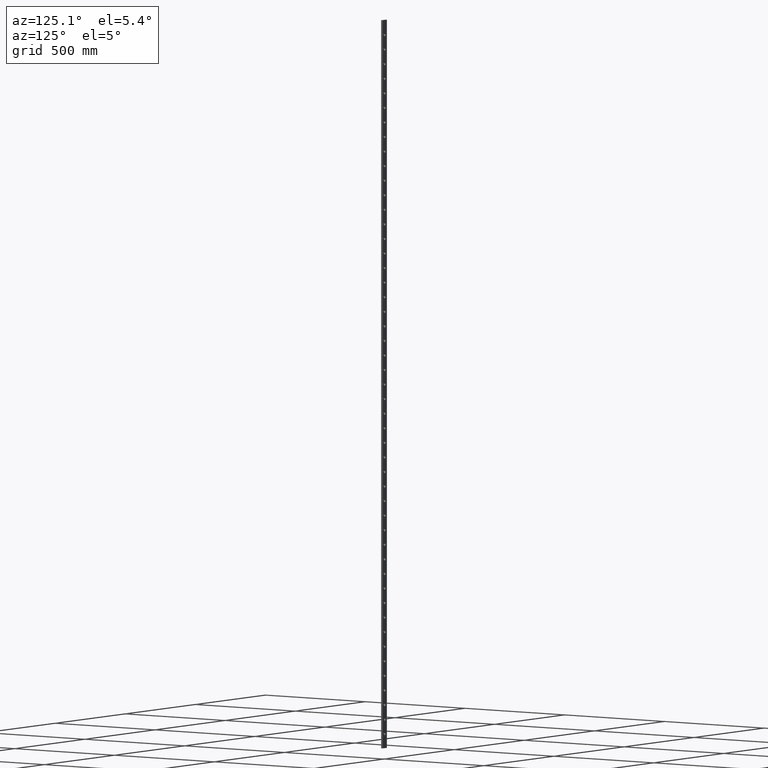
[diagram: clean part render]
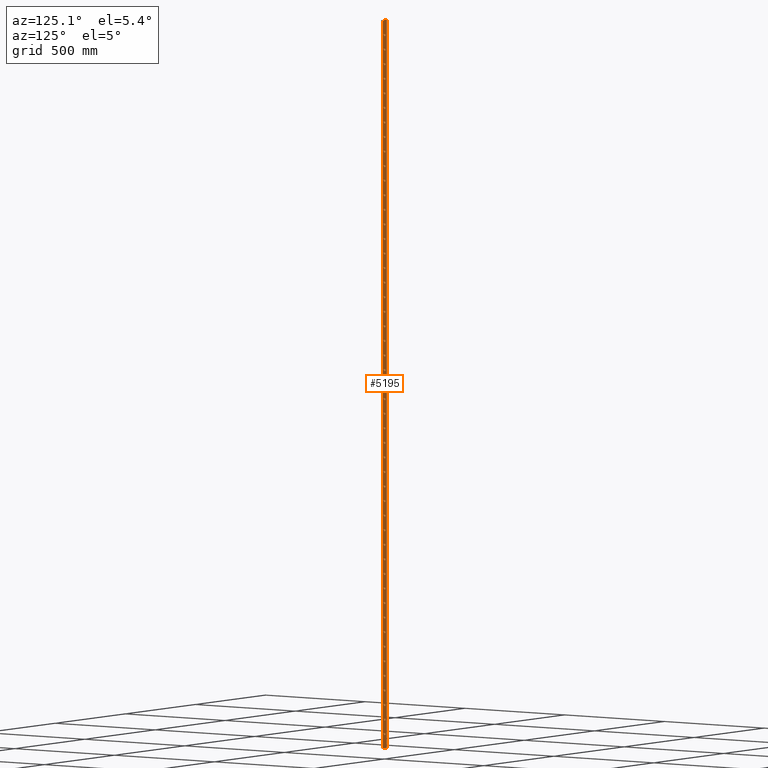
[diagram: same view with one face highlighted and labeled with its STEP entity id]
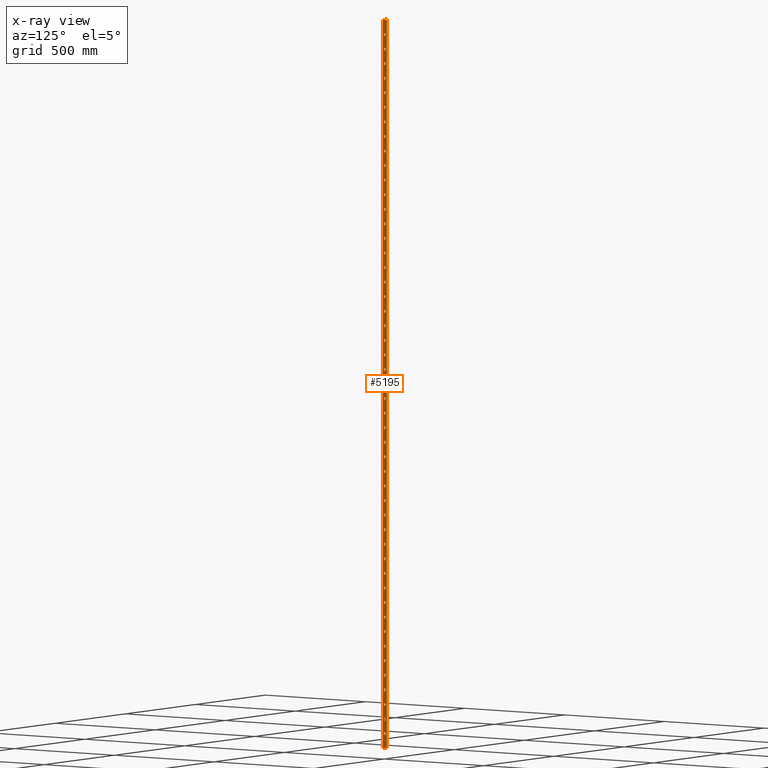
[diagram: x-ray of the same camera — body ghosted, the highlighted face saturated]
A machine part, auxiliary view. The second image highlights one B-rep face of the part: STEP entity #5195.
The next image is the same camera in x-ray: the body ghosted, the highlighted face saturated — about 0% of this face is hidden behind the body in this view.
In plain terms, the highlighted planar face has unit normal (-0, 1, 0).
Its self-contained STEP definition (entity closure, byte-faithful):
#32 = EDGE_LOOP ( 'NONE', ( #4092 ) ) ;
#33 = DIRECTION ( 'NONE',  ( 0.000000000000000000, 1.000000000000000000, 0.000000000000000000 ) ) ;
#49 = ORIENTED_EDGE ( 'NONE', *, *, #12150, .F. ) ;
#83 = EDGE_LOOP ( 'NONE', ( #10927 ) ) ;
#163 = CIRCLE ( 'NONE', #3025, 6.499999999999950262 ) ;
#209 = EDGE_LOOP ( 'NONE', ( #49 ) ) ;
#335 = FACE_BOUND ( 'NONE', #1412, .T. ) ;
#343 = CARTESIAN_POINT ( 'NONE',  ( 0.000000000000000000, 4.000000000000000000, 246.4999999999998863 ) ) ;
#345 = FACE_BOUND ( 'NONE', #6149, .T. ) ;
#380 = AXIS2_PLACEMENT_3D ( 'NONE', #11174, #6291, #5039 ) ;
#397 = CARTESIAN_POINT ( 'NONE',  ( 0.000000000000000000, 4.000000000000000000, 1266.500000000000000 ) ) ;
#443 = ORIENTED_EDGE ( 'NONE', *, *, #15071, .F. ) ;
#487 = VERTEX_POINT ( 'NONE', #397 ) ;
#492 = CARTESIAN_POINT ( 'NONE',  ( 0.000000000000000000, 4.000000000000000000, -353.4999999999999432 ) ) ;
#498 = DIRECTION ( 'NONE',  ( 0.000000000000000000, 1.000000000000000000, 0.000000000000000000 ) ) ;
#530 = DIRECTION ( 'NONE',  ( 0.000000000000000000, 0.000000000000000000, 1.000000000000000000 ) ) ;
#539 = FACE_BOUND ( 'NONE', #10533, .T. ) ;
#551 = DIRECTION ( 'NONE',  ( 0.000000000000000000, 1.000000000000000000, 0.000000000000000000 ) ) ;
#647 = CARTESIAN_POINT ( 'NONE',  ( 0.000000000000000000, 4.000000000000000000, 0.000000000000000000 ) ) ;
#657 = CARTESIAN_POINT ( 'NONE',  ( 0.000000000000000000, 4.000000000000000000, -1013.500000000000114 ) ) ;
#702 = DIRECTION ( 'NONE',  ( 0.000000000000000000, 1.000000000000000000, 0.000000000000000000 ) ) ;
#704 = CARTESIAN_POINT ( 'NONE',  ( 0.000000000000000000, 4.000000000000000000, -773.4999999999998863 ) ) ;
#750 = ORIENTED_EDGE ( 'NONE', *, *, #11049, .F. ) ;
#767 = CARTESIAN_POINT ( 'NONE',  ( 0.000000000000000000, 4.000000000000000000, -60.00000000000005684 ) ) ;
#836 = DIRECTION ( 'NONE',  ( 0.000000000000000000, 1.000000000000000000, 0.000000000000000000 ) ) ;
#917 = FACE_BOUND ( 'NONE', #1176, .T. ) ;
#962 = EDGE_LOOP ( 'NONE', ( #13797 ) ) ;
#1042 = DIRECTION ( 'NONE',  ( 0.000000000000000000, 1.000000000000000000, 0.000000000000000000 ) ) ;
#1061 = CIRCLE ( 'NONE', #3776, 6.499999999999964473 ) ;
#1150 = CARTESIAN_POINT ( 'NONE',  ( 0.000000000000000000, 4.000000000000000000, 1380.000000000000000 ) ) ;
#1151 = CIRCLE ( 'NONE', #6970, 6.499999999999964473 ) ;
#1176 = EDGE_LOOP ( 'NONE', ( #10502 ) ) ;
#1185 = EDGE_CURVE ( 'NONE', #10036, #10036, #13785, .T. ) ;
#1227 = ORIENTED_EDGE ( 'NONE', *, *, #9667, .F. ) ;
#1251 = EDGE_CURVE ( 'NONE', #12918, #12918, #6101, .T. ) ;
#1289 = FACE_BOUND ( 'NONE', #7164, .T. ) ;
#1294 = CARTESIAN_POINT ( 'NONE',  ( 0.000000000000000000, 4.000000000000000000, -1020.000000000000000 ) ) ;
#1303 = DIRECTION ( 'NONE',  ( 0.000000000000000000, 1.000000000000000000, 0.000000000000000000 ) ) ;
#1304 = FACE_BOUND ( 'NONE', #9537, .T. ) ;
#1332 = AXIS2_PLACEMENT_3D ( 'NONE', #8805, #11176, #8641 ) ;
#1339 = CIRCLE ( 'NONE', #5827, 6.499999999999950262 ) ;
#1371 = CARTESIAN_POINT ( 'NONE',  ( 15.00000000000000000, 4.000000000000000000, -1500.000000000000000 ) ) ;
#1412 = EDGE_LOOP ( 'NONE', ( #12208 ) ) ;
#1418 = EDGE_CURVE ( 'NONE', #5617, #5617, #7630, .T. ) ;
#1426 = ORIENTED_EDGE ( 'NONE', *, *, #2620, .F. ) ;
#1463 = CARTESIAN_POINT ( 'NONE',  ( 0.000000000000000000, 4.000000000000000000, 240.0000000000000000 ) ) ;
#1576 = ORIENTED_EDGE ( 'NONE', *, *, #2432, .F. ) ;
#1586 = EDGE_CURVE ( 'NONE', #4817, #4817, #13979, .T. ) ;
#1587 = CARTESIAN_POINT ( 'NONE',  ( 0.000000000000000000, 4.000000000000000000, -593.5000000000001137 ) ) ;
#1608 = ORIENTED_EDGE ( 'NONE', *, *, #8286, .F. ) ;
#1611 = ORIENTED_EDGE ( 'NONE', *, *, #13523, .F. ) ;
#1626 = ORIENTED_EDGE ( 'NONE', *, *, #4208, .T. ) ;
#1647 = VERTEX_POINT ( 'NONE', #2729 ) ;
#1660 = EDGE_CURVE ( 'NONE', #3085, #3085, #7062, .T. ) ;
#1667 = DIRECTION ( 'NONE',  ( 0.000000000000000000, 1.000000000000000000, 0.000000000000000000 ) ) ;
#1685 = AXIS2_PLACEMENT_3D ( 'NONE', #11268, #3874, #5137 ) ;
#1696 = FACE_BOUND ( 'NONE', #11302, .T. ) ;
#1698 = DIRECTION ( 'NONE',  ( 0.000000000000000000, 0.000000000000000000, 1.000000000000000000 ) ) ;
#1700 = CARTESIAN_POINT ( 'NONE',  ( 0.000000000000000000, 4.000000000000000000, 600.0000000000000000 ) ) ;
#1729 = CARTESIAN_POINT ( 'NONE',  ( 0.000000000000000000, 4.000000000000000000, -653.5000000000002274 ) ) ;
#1732 = AXIS2_PLACEMENT_3D ( 'NONE', #11693, #8127, #14095 ) ;
#1747 = DIRECTION ( 'NONE',  ( 0.000000000000000000, 1.000000000000000000, 0.000000000000000000 ) ) ;
#1774 = CIRCLE ( 'NONE', #1779, 6.499999999999950262 ) ;
#1779 = AXIS2_PLACEMENT_3D ( 'NONE', #4559, #8325, #5808 ) ;
#1786 = CARTESIAN_POINT ( 'NONE',  ( 0.000000000000000000, 4.000000000000000000, 1206.500000000000000 ) ) ;
#1792 = DIRECTION ( 'NONE',  ( 0.000000000000000000, 1.000000000000000000, 0.000000000000000000 ) ) ;
#1840 = VERTEX_POINT ( 'NONE', #10713 ) ;
#1848 = CARTESIAN_POINT ( 'NONE',  ( 0.000000000000000000, 4.000000000000000000, -1080.000000000000000 ) ) ;
#1863 = ORIENTED_EDGE ( 'NONE', *, *, #15351, .F. ) ;
#1880 = VERTEX_POINT ( 'NONE', #10071 ) ;
#1881 = CARTESIAN_POINT ( 'NONE',  ( 0.000000000000000000, 4.000000000000000000, -899.9999999999998863 ) ) ;
#1895 = CIRCLE ( 'NONE', #1996, 6.499999999999783284 ) ;
#1912 = ORIENTED_EDGE ( 'NONE', *, *, #10087, .F. ) ;
#1939 = DIRECTION ( 'NONE',  ( 0.000000000000000000, 1.000000000000000000, 0.000000000000000000 ) ) ;
#1978 = ORIENTED_EDGE ( 'NONE', *, *, #5585, .F. ) ;
#1996 = AXIS2_PLACEMENT_3D ( 'NONE', #5902, #836, #2087 ) ;
#2044 = VERTEX_POINT ( 'NONE', #12547 ) ;
#2087 = DIRECTION ( 'NONE',  ( 0.000000000000000000, 0.000000000000000000, 1.000000000000000000 ) ) ;
#2173 = VERTEX_POINT ( 'NONE', #11687 ) ;
#2220 = DIRECTION ( 'NONE',  ( 0.000000000000000000, 1.000000000000000000, 0.000000000000000000 ) ) ;
#2239 = EDGE_CURVE ( 'NONE', #2294, #2294, #6676, .T. ) ;
#2262 = EDGE_CURVE ( 'NONE', #6379, #6379, #15700, .T. ) ;
#2263 = EDGE_LOOP ( 'NONE', ( #6068 ) ) ;
#2278 = FACE_BOUND ( 'NONE', #7181, .T. ) ;
#2294 = VERTEX_POINT ( 'NONE', #4346 ) ;
#2409 = AXIS2_PLACEMENT_3D ( 'NONE', #12641, #11356, #14953 ) ;
#2411 = EDGE_LOOP ( 'NONE', ( #6899 ) ) ;
#2413 = VERTEX_POINT ( 'NONE', #11781 ) ;
#2432 = EDGE_CURVE ( 'NONE', #15786, #15786, #15301, .T. ) ;
#2454 = CIRCLE ( 'NONE', #2833, 6.499999999999950262 ) ;
#2483 = AXIS2_PLACEMENT_3D ( 'NONE', #1463, #2717, #13879 ) ;
#2486 = ORIENTED_EDGE ( 'NONE', *, *, #4543, .F. ) ;
#2512 = VERTEX_POINT ( 'NONE', #14207 ) ;
#2527 = VERTEX_POINT ( 'NONE', #5557 ) ;
#2555 = CIRCLE ( 'NONE', #14485, 6.500000000000172307 ) ;
#2576 = CARTESIAN_POINT ( 'NONE',  ( 0.000000000000000000, 4.000000000000000000, -1199.999999999999773 ) ) ;
#2598 = VERTEX_POINT ( 'NONE', #15480 ) ;
#2603 = DIRECTION ( 'NONE',  ( 0.000000000000000000, 0.000000000000000000, 1.000000000000000000 ) ) ;
#2614 = CIRCLE ( 'NONE', #4629, 6.499999999999950262 ) ;
#2620 = EDGE_CURVE ( 'NONE', #5210, #5210, #3730, .T. ) ;
#2624 = VERTEX_POINT ( 'NONE', #3083 ) ;
#2645 = EDGE_LOOP ( 'NONE', ( #15026 ) ) ;
#2652 = DIRECTION ( 'NONE',  ( 0.000000000000000000, 1.000000000000000000, 0.000000000000000000 ) ) ;
#2653 = EDGE_LOOP ( 'NONE', ( #9454 ) ) ;
#2667 = FACE_BOUND ( 'NONE', #5295, .T. ) ;
#2717 = DIRECTION ( 'NONE',  ( 0.000000000000000000, 1.000000000000000000, 0.000000000000000000 ) ) ;
#2719 = CIRCLE ( 'NONE', #13432, 6.499999999999728217 ) ;
#2726 = AXIS2_PLACEMENT_3D ( 'NONE', #10835, #1792, #7141 ) ;
#2729 = CARTESIAN_POINT ( 'NONE',  ( 0.000000000000000000, 4.000000000000000000, 1326.499999999999773 ) ) ;
#2758 = EDGE_LOOP ( 'NONE', ( #8929 ) ) ;
#2833 = AXIS2_PLACEMENT_3D ( 'NONE', #2576, #14978, #12338 ) ;
#2874 = FACE_BOUND ( 'NONE', #2758, .T. ) ;
#2963 = ORIENTED_EDGE ( 'NONE', *, *, #11265, .F. ) ;
#2993 = CIRCLE ( 'NONE', #6741, 6.499999999999950262 ) ;
#2996 = CARTESIAN_POINT ( 'NONE',  ( 0.000000000000000000, 4.000000000000000000, 66.49999999999991473 ) ) ;
#3021 = VERTEX_POINT ( 'NONE', #3222 ) ;
#3025 = AXIS2_PLACEMENT_3D ( 'NONE', #9820, #7298, #14700 ) ;
#3051 = CARTESIAN_POINT ( 'NONE',  ( 0.000000000000000000, 4.000000000000000000, 366.4999999999997726 ) ) ;
#3083 = CARTESIAN_POINT ( 'NONE',  ( 0.000000000000000000, 4.000000000000000000, -713.5000000000002274 ) ) ;
#3085 = VERTEX_POINT ( 'NONE', #6788 ) ;
#3128 = DIRECTION ( 'NONE',  ( 0.000000000000000000, 0.000000000000000000, 1.000000000000000000 ) ) ;
#3211 = DIRECTION ( 'NONE',  ( 0.000000000000000000, 1.000000000000000000, 0.000000000000000000 ) ) ;
#3219 = ORIENTED_EDGE ( 'NONE', *, *, #4090, .F. ) ;
#3220 = EDGE_CURVE ( 'NONE', #5396, #5396, #10284, .T. ) ;
#3222 = CARTESIAN_POINT ( 'NONE',  ( 0.000000000000000000, 4.000000000000000000, 726.4999999999998863 ) ) ;
#3231 = ORIENTED_EDGE ( 'NONE', *, *, #10964, .F. ) ;
#3232 = DIRECTION ( 'NONE',  ( 0.000000000000000000, 0.000000000000000000, 1.000000000000000000 ) ) ;
#3247 = AXIS2_PLACEMENT_3D ( 'NONE', #6957, #702, #8234 ) ;
#3275 = FACE_BOUND ( 'NONE', #6678, .T. ) ;
#3329 = ORIENTED_EDGE ( 'NONE', *, *, #12258, .F. ) ;
#3366 = CARTESIAN_POINT ( 'NONE',  ( 0.000000000000000000, 4.000000000000000000, 780.0000000000000000 ) ) ;
#3424 = DIRECTION ( 'NONE',  ( 0.000000000000000000, 0.000000000000000000, 1.000000000000000000 ) ) ;
#3428 = ORIENTED_EDGE ( 'NONE', *, *, #2262, .F. ) ;
#3555 = EDGE_LOOP ( 'NONE', ( #15830 ) ) ;
#3602 = CARTESIAN_POINT ( 'NONE',  ( 0.000000000000000000, 4.000000000000000000, -839.9999999999998863 ) ) ;
#3620 = VECTOR ( 'NONE', #8405, 1000.000000000000000 ) ;
#3645 = FACE_BOUND ( 'NONE', #6607, .T. ) ;
#3711 = AXIS2_PLACEMENT_3D ( 'NONE', #13004, #6833, #8115 ) ;
#3726 = EDGE_CURVE ( 'NONE', #4804, #4804, #9905, .T. ) ;
#3730 = CIRCLE ( 'NONE', #10795, 6.499999999999728217 ) ;
#3776 = AXIS2_PLACEMENT_3D ( 'NONE', #767, #4418, #12926 ) ;
#3834 = FACE_BOUND ( 'NONE', #7367, .T. ) ;
#3874 = DIRECTION ( 'NONE',  ( 0.000000000000000000, 1.000000000000000000, 0.000000000000000000 ) ) ;
#3955 = CARTESIAN_POINT ( 'NONE',  ( 0.000000000000000000, 4.000000000000000000, -480.0000000000000000 ) ) ;
#4030 = ORIENTED_EDGE ( 'NONE', *, *, #7749, .F. ) ;
#4090 = EDGE_CURVE ( 'NONE', #4395, #4395, #10684, .T. ) ;
#4092 = ORIENTED_EDGE ( 'NONE', *, *, #6042, .F. ) ;
#4114 = VERTEX_POINT ( 'NONE', #15531 ) ;
#4133 = ORIENTED_EDGE ( 'NONE', *, *, #6400, .T. ) ;
#4163 = EDGE_CURVE ( 'NONE', #7854, #7854, #1774, .T. ) ;
#4180 = CARTESIAN_POINT ( 'NONE',  ( 0.000000000000000000, 4.000000000000000000, 666.4999999999998863 ) ) ;
#4208 = EDGE_CURVE ( 'NONE', #1880, #10727, #6829, .T. ) ;
#4216 = CARTESIAN_POINT ( 'NONE',  ( 0.000000000000000000, 4.000000000000000000, -720.0000000000002274 ) ) ;
#4224 = FACE_BOUND ( 'NONE', #4824, .T. ) ;
#4327 = EDGE_LOOP ( 'NONE', ( #7303 ) ) ;
#4346 = CARTESIAN_POINT ( 'NONE',  ( 0.000000000000000000, 4.000000000000000000, 1446.500000000000000 ) ) ;
#4376 = CARTESIAN_POINT ( 'NONE',  ( 0.000000000000000000, 4.000000000000000000, 1319.999999999999773 ) ) ;
#4395 = VERTEX_POINT ( 'NONE', #704 ) ;
#4418 = DIRECTION ( 'NONE',  ( 0.000000000000000000, 1.000000000000000000, 0.000000000000000000 ) ) ;
#4476 = EDGE_CURVE ( 'NONE', #7460, #7460, #4695, .T. ) ;
#4477 = CARTESIAN_POINT ( 'NONE',  ( 0.000000000000000000, 4.000000000000000000, 179.9999999999999432 ) ) ;
#4481 = AXIS2_PLACEMENT_3D ( 'NONE', #15891, #9717, #14660 ) ;
#4518 = CIRCLE ( 'NONE', #12535, 6.499999999999950262 ) ;
#4521 = ORIENTED_EDGE ( 'NONE', *, *, #9839, .F. ) ;
#4543 = EDGE_CURVE ( 'NONE', #5731, #5731, #2555, .T. ) ;
#4546 = DIRECTION ( 'NONE',  ( 0.000000000000000000, 0.000000000000000000, 1.000000000000000000 ) ) ;
#4550 = EDGE_LOOP ( 'NONE', ( #3428 ) ) ;
#4559 = CARTESIAN_POINT ( 'NONE',  ( 0.000000000000000000, 4.000000000000000000, 659.9999999999998863 ) ) ;
#4582 = VERTEX_POINT ( 'NONE', #7549 ) ;
#4629 = AXIS2_PLACEMENT_3D ( 'NONE', #12137, #2220, #7151 ) ;
#4650 = CARTESIAN_POINT ( 'NONE',  ( 0.000000000000000000, 4.000000000000000000, 1140.000000000000000 ) ) ;
#4675 = EDGE_LOOP ( 'NONE', ( #5571 ) ) ;
#4695 = CIRCLE ( 'NONE', #13665, 6.499999999999950262 ) ;
#4713 = DIRECTION ( 'NONE',  ( 0.000000000000000000, 0.000000000000000000, 1.000000000000000000 ) ) ;
#4715 = ORIENTED_EDGE ( 'NONE', *, *, #6334, .F. ) ;
#4735 = EDGE_LOOP ( 'NONE', ( #13188 ) ) ;
#4752 = EDGE_CURVE ( 'NONE', #10727, #10765, #11856, .T. ) ;
#4774 = ORIENTED_EDGE ( 'NONE', *, *, #10233, .T. ) ;
#4804 = VERTEX_POINT ( 'NONE', #12956 ) ;
#4817 = VERTEX_POINT ( 'NONE', #2996 ) ;
#4824 = EDGE_LOOP ( 'NONE', ( #3231 ) ) ;
#4828 = EDGE_CURVE ( 'NONE', #2413, #2413, #4518, .T. ) ;
#4883 = VERTEX_POINT ( 'NONE', #1729 ) ;
#4908 = EDGE_LOOP ( 'NONE', ( #5270 ) ) ;
#4956 = CARTESIAN_POINT ( 'NONE',  ( 0.000000000000000000, 4.000000000000000000, 419.9999999999999432 ) ) ;
#4957 = VERTEX_POINT ( 'NONE', #8121 ) ;
#5008 = FACE_OUTER_BOUND ( 'NONE', #13108, .T. ) ;
#5039 = DIRECTION ( 'NONE',  ( 0.000000000000000000, 0.000000000000000000, 1.000000000000000000 ) ) ;
#5116 = CARTESIAN_POINT ( 'NONE',  ( -15.00000000000000000, 4.000000000000000000, 1500.000000000000000 ) ) ;
#5137 = DIRECTION ( 'NONE',  ( 0.000000000000000000, 0.000000000000000000, 1.000000000000000000 ) ) ;
#5152 = VERTEX_POINT ( 'NONE', #12603 ) ;
#5194 = FACE_BOUND ( 'NONE', #5417, .T. ) ;
#5195 = ADVANCED_FACE ( 'NONE', ( #15215, #6175, #12330, #9632, #11948, #5988, #12509, #10026, #1304, #14063, #6366, #9048, #2667, #8465, #3275, #6571, #5800, #15969, #13105, #15402, #4224, #5408, #12124, #10802, #5008, #5601, #539, #2874, #2278, #917, #13666, #10403, #11753, #5194, #14828, #7133, #1696, #11567, #3645, #345, #9448, #3834, #1289, #10977, #6955, #10011, #335, #7500, #6164, #11153 ), #15682, .T. ) ;
#5210 = VERTEX_POINT ( 'NONE', #9131 ) ;
#5270 = ORIENTED_EDGE ( 'NONE', *, *, #10350, .F. ) ;
#5288 = CIRCLE ( 'NONE', #5389, 6.499999999999950262 ) ;
#5295 = EDGE_LOOP ( 'NONE', ( #14190 ) ) ;
#5312 = AXIS2_PLACEMENT_3D ( 'NONE', #4956, #1303, #8767 ) ;
#5322 = VERTEX_POINT ( 'NONE', #657 ) ;
#5329 = DIRECTION ( 'NONE',  ( 0.000000000000000000, 1.000000000000000000, 0.000000000000000000 ) ) ;
#5352 = VERTEX_POINT ( 'NONE', #492 ) ;
#5389 = AXIS2_PLACEMENT_3D ( 'NONE', #12881, #6653, #1698 ) ;
#5396 = VERTEX_POINT ( 'NONE', #3051 ) ;
#5408 = FACE_BOUND ( 'NONE', #13920, .T. ) ;
#5417 = EDGE_LOOP ( 'NONE', ( #14543 ) ) ;
#5438 = EDGE_LOOP ( 'NONE', ( #3219 ) ) ;
#5441 = CARTESIAN_POINT ( 'NONE',  ( 0.000000000000000000, 4.000000000000000000, 840.0000000000000000 ) ) ;
#5491 = CARTESIAN_POINT ( 'NONE',  ( 0.000000000000000000, 4.000000000000000000, -293.5000000000002842 ) ) ;
#5551 = VERTEX_POINT ( 'NONE', #13724 ) ;
#5557 = CARTESIAN_POINT ( 'NONE',  ( 0.000000000000000000, 4.000000000000000000, 966.4999999999998863 ) ) ;
#5571 = ORIENTED_EDGE ( 'NONE', *, *, #3220, .F. ) ;
#5585 = EDGE_CURVE ( 'NONE', #6682, #6682, #1895, .T. ) ;
#5589 = EDGE_CURVE ( 'NONE', #2598, #2598, #10596, .T. ) ;
#5590 = CIRCLE ( 'NONE', #8627, 6.499999999999950262 ) ;
#5601 = FACE_BOUND ( 'NONE', #11168, .T. ) ;
#5606 = CARTESIAN_POINT ( 'NONE',  ( 0.000000000000000000, 4.000000000000000000, -1373.500000000000000 ) ) ;
#5617 = VERTEX_POINT ( 'NONE', #6686 ) ;
#5652 = CARTESIAN_POINT ( 'NONE',  ( 0.000000000000000000, 4.000000000000000000, 546.5000000000002274 ) ) ;
#5655 = CARTESIAN_POINT ( 'NONE',  ( -15.00000000000000000, 4.000000000000000000, 1500.000000000000000 ) ) ;
#5659 = CARTESIAN_POINT ( 'NONE',  ( 0.000000000000000000, 4.000000000000000000, 1080.000000000000000 ) ) ;
#5687 = VECTOR ( 'NONE', #10603, 1000.000000000000000 ) ;
#5705 = DIRECTION ( 'NONE',  ( -0.000000000000000000, 1.000000000000000000, 0.000000000000000000 ) ) ;
#5731 = VERTEX_POINT ( 'NONE', #8069 ) ;
#5753 = VERTEX_POINT ( 'NONE', #14041 ) ;
#5790 = CARTESIAN_POINT ( 'NONE',  ( 0.000000000000000000, 4.000000000000000000, -660.0000000000001137 ) ) ;
#5791 = DIRECTION ( 'NONE',  ( 0.000000000000000000, 0.000000000000000000, 1.000000000000000000 ) ) ;
#5800 = FACE_BOUND ( 'NONE', #13737, .T. ) ;
#5808 = DIRECTION ( 'NONE',  ( 0.000000000000000000, 0.000000000000000000, 1.000000000000000000 ) ) ;
#5827 = AXIS2_PLACEMENT_3D ( 'NONE', #7006, #9367, #10606 ) ;
#5836 = DIRECTION ( 'NONE',  ( 0.000000000000000000, 0.000000000000000000, 1.000000000000000000 ) ) ;
#5902 = CARTESIAN_POINT ( 'NONE',  ( 0.000000000000000000, 4.000000000000000000, -240.0000000000000000 ) ) ;
#5988 = FACE_BOUND ( 'NONE', #5438, .T. ) ;
#6020 = EDGE_CURVE ( 'NONE', #11062, #11062, #2454, .T. ) ;
#6042 = EDGE_CURVE ( 'NONE', #13948, #13948, #7682, .T. ) ;
#6041 = CIRCLE ( 'NONE', #9298, 6.499999999999950262 ) ;
#6068 = ORIENTED_EDGE ( 'NONE', *, *, #1185, .F. ) ;
#6101 = CIRCLE ( 'NONE', #4481, 6.499999999999950262 ) ;
#6149 = EDGE_LOOP ( 'NONE', ( #1978 ) ) ;
#6164 = FACE_BOUND ( 'NONE', #4327, .T. ) ;
#6175 = FACE_BOUND ( 'NONE', #4908, .T. ) ;
#6183 = EDGE_LOOP ( 'NONE', ( #4521 ) ) ;
#6221 = EDGE_CURVE ( 'NONE', #2173, #2173, #15186, .T. ) ;
#6237 = VERTEX_POINT ( 'NONE', #6910 ) ;
#6269 = LINE ( 'NONE', #1371, #15687 ) ;
#6277 = AXIS2_PLACEMENT_3D ( 'NONE', #3366, #9576, #3424 ) ;
#6291 = DIRECTION ( 'NONE',  ( 0.000000000000000000, 1.000000000000000000, 0.000000000000000000 ) ) ;
#6334 = EDGE_CURVE ( 'NONE', #4883, #4883, #5590, .T. ) ;
#6366 = FACE_BOUND ( 'NONE', #2263, .T. ) ;
#6379 = VERTEX_POINT ( 'NONE', #5652 ) ;
#6400 = EDGE_CURVE ( 'NONE', #10765, #4114, #7306, .T. ) ;
#6571 = FACE_BOUND ( 'NONE', #7817, .T. ) ;
#6573 = DIRECTION ( 'NONE',  ( 0.000000000000000000, 0.000000000000000000, 1.000000000000000000 ) ) ;
#6607 = EDGE_LOOP ( 'NONE', ( #8952 ) ) ;
#6653 = DIRECTION ( 'NONE',  ( 0.000000000000000000, 1.000000000000000000, 0.000000000000000000 ) ) ;
#6669 = AXIS2_PLACEMENT_3D ( 'NONE', #13760, #5329, #6573 ) ;
#6672 = DIRECTION ( 'NONE',  ( 0.000000000000000000, 0.000000000000000000, 1.000000000000000000 ) ) ;
#6676 = CIRCLE ( 'NONE', #6669, 6.499999999999950262 ) ;
#6678 = EDGE_LOOP ( 'NONE', ( #1863 ) ) ;
#6682 = VERTEX_POINT ( 'NONE', #10483 ) ;
#6686 = CARTESIAN_POINT ( 'NONE',  ( 0.000000000000000000, 4.000000000000000000, 426.4999999999998295 ) ) ;
#6741 = AXIS2_PLACEMENT_3D ( 'NONE', #1294, #498, #11184 ) ;
#6788 = CARTESIAN_POINT ( 'NONE',  ( 0.000000000000000000, 4.000000000000000000, 1146.499999999999773 ) ) ;
#6791 = DIRECTION ( 'NONE',  ( 0.000000000000000000, 0.000000000000000000, 1.000000000000000000 ) ) ;
#6829 = LINE ( 'NONE', #9566, #8364 ) ;
#6833 = DIRECTION ( 'NONE',  ( 0.000000000000000000, 1.000000000000000000, 0.000000000000000000 ) ) ;
#6899 = ORIENTED_EDGE ( 'NONE', *, *, #12095, .F. ) ;
#6910 = CARTESIAN_POINT ( 'NONE',  ( 0.000000000000000000, 4.000000000000000000, -53.50000000000009237 ) ) ;
#6914 = CIRCLE ( 'NONE', #2726, 6.499999999999950262 ) ;
#6919 = CARTESIAN_POINT ( 'NONE',  ( 0.000000000000000000, 4.000000000000000000, -300.0000000000000568 ) ) ;
#6940 = CARTESIAN_POINT ( 'NONE',  ( 0.000000000000000000, 4.000000000000000000, 720.0000000000000000 ) ) ;
#6955 = FACE_BOUND ( 'NONE', #4735, .T. ) ;
#6957 = CARTESIAN_POINT ( 'NONE',  ( 0.000000000000000000, 4.000000000000000000, 120.0000000000001137 ) ) ;
#6970 = AXIS2_PLACEMENT_3D ( 'NONE', #7965, #1747, #11643 ) ;
#7006 = CARTESIAN_POINT ( 'NONE',  ( 0.000000000000000000, 4.000000000000000000, -600.0000000000001137 ) ) ;
#7052 = CARTESIAN_POINT ( 'NONE',  ( 0.000000000000000000, 4.000000000000000000, -359.9999999999998863 ) ) ;
#7062 = CIRCLE ( 'NONE', #11078, 6.499999999999950262 ) ;
#7065 = ORIENTED_EDGE ( 'NONE', *, *, #2239, .F. ) ;
#7133 = FACE_BOUND ( 'NONE', #13834, .T. ) ;
#7141 = DIRECTION ( 'NONE',  ( 0.000000000000000000, 0.000000000000000000, 1.000000000000000000 ) ) ;
#7151 = DIRECTION ( 'NONE',  ( 0.000000000000000000, 0.000000000000000000, 1.000000000000000000 ) ) ;
#7164 = EDGE_LOOP ( 'NONE', ( #443 ) ) ;
#7181 = EDGE_LOOP ( 'NONE', ( #12019 ) ) ;
#7232 = DIRECTION ( 'NONE',  ( 0.000000000000000000, 1.000000000000000000, 0.000000000000000000 ) ) ;
#7245 = CIRCLE ( 'NONE', #1732, 6.499999999999950262 ) ;
#7289 = CARTESIAN_POINT ( 'NONE',  ( 0.000000000000000000, 4.000000000000000000, 480.0000000000000000 ) ) ;
#7293 = CARTESIAN_POINT ( 'NONE',  ( 0.000000000000000000, 4.000000000000000000, 0.000000000000000000 ) ) ;
#7298 = DIRECTION ( 'NONE',  ( 0.000000000000000000, 1.000000000000000000, 0.000000000000000000 ) ) ;
#7303 = ORIENTED_EDGE ( 'NONE', *, *, #15755, .F. ) ;
#7306 = LINE ( 'NONE', #14524, #3620 ) ;
#7367 = EDGE_LOOP ( 'NONE', ( #2963 ) ) ;
#7460 = VERTEX_POINT ( 'NONE', #12795 ) ;
#7500 = FACE_BOUND ( 'NONE', #13652, .T. ) ;
#7549 = CARTESIAN_POINT ( 'NONE',  ( 0.000000000000000000, 4.000000000000000000, -893.5000000000000000 ) ) ;
#7581 = EDGE_LOOP ( 'NONE', ( #1227 ) ) ;
#7630 = CIRCLE ( 'NONE', #5312, 6.499999999999895195 ) ;
#7682 = CIRCLE ( 'NONE', #1685, 6.499999999999950262 ) ;
#7725 = EDGE_CURVE ( 'NONE', #13168, #13168, #6914, .T. ) ;
#7749 = EDGE_CURVE ( 'NONE', #6237, #6237, #1061, .T. ) ;
#7784 = CIRCLE ( 'NONE', #9915, 6.499999999999950262 ) ;
#7817 = EDGE_LOOP ( 'NONE', ( #8711 ) ) ;
#7846 = VERTEX_POINT ( 'NONE', #343 ) ;
#7854 = VERTEX_POINT ( 'NONE', #4180 ) ;
#7947 = DIRECTION ( 'NONE',  ( 0.000000000000000000, 1.000000000000000000, 0.000000000000000000 ) ) ;
#7965 = CARTESIAN_POINT ( 'NONE',  ( 0.000000000000000000, 4.000000000000000000, -120.0000000000001137 ) ) ;
#8069 = CARTESIAN_POINT ( 'NONE',  ( 0.000000000000000000, 4.000000000000000000, 606.5000000000001137 ) ) ;
#8095 = AXIS2_PLACEMENT_3D ( 'NONE', #14474, #14589, #13409 ) ;
#8101 = DIRECTION ( 'NONE',  ( 0.000000000000000000, 1.000000000000000000, 0.000000000000000000 ) ) ;
#8115 = DIRECTION ( 'NONE',  ( 0.000000000000000000, 0.000000000000000000, 1.000000000000000000 ) ) ;
#8119 = ORIENTED_EDGE ( 'NONE', *, *, #7725, .F. ) ;
#8121 = CARTESIAN_POINT ( 'NONE',  ( 0.000000000000000000, 4.000000000000000000, 846.5000000000001137 ) ) ;
#8127 = DIRECTION ( 'NONE',  ( 0.000000000000000000, 1.000000000000000000, 0.000000000000000000 ) ) ;
#8214 = DIRECTION ( 'NONE',  ( 0.000000000000000000, 1.000000000000000000, 0.000000000000000000 ) ) ;
#8222 = EDGE_LOOP ( 'NONE', ( #750 ) ) ;
#8234 = DIRECTION ( 'NONE',  ( 0.000000000000000000, 0.000000000000000000, 1.000000000000000000 ) ) ;
#8248 = EDGE_CURVE ( 'NONE', #2527, #2527, #2614, .T. ) ;
#8259 = DIRECTION ( 'NONE',  ( 0.000000000000000000, 1.000000000000000000, 0.000000000000000000 ) ) ;
#8280 = EDGE_LOOP ( 'NONE', ( #4715 ) ) ;
#8286 = EDGE_CURVE ( 'NONE', #2512, #2512, #11501, .T. ) ;
#8325 = DIRECTION ( 'NONE',  ( 0.000000000000000000, 1.000000000000000000, 0.000000000000000000 ) ) ;
#8364 = VECTOR ( 'NONE', #10697, 1000.000000000000000 ) ;
#8405 = DIRECTION ( 'NONE',  ( 0.000000000000000000, 0.000000000000000000, -1.000000000000000000 ) ) ;
#8465 = FACE_BOUND ( 'NONE', #3555, .T. ) ;
#8509 = DIRECTION ( 'NONE',  ( 0.000000000000000000, 1.000000000000000000, 0.000000000000000000 ) ) ;
#8617 = VERTEX_POINT ( 'NONE', #1587 ) ;
#8627 = AXIS2_PLACEMENT_3D ( 'NONE', #5790, #8259, #3232 ) ;
#8641 = DIRECTION ( 'NONE',  ( 0.000000000000000000, 0.000000000000000000, 1.000000000000000000 ) ) ;
#8711 = ORIENTED_EDGE ( 'NONE', *, *, #1418, .F. ) ;
#8739 = DIRECTION ( 'NONE',  ( 0.000000000000000000, 0.000000000000000000, 1.000000000000000000 ) ) ;
#8767 = DIRECTION ( 'NONE',  ( 0.000000000000000000, 0.000000000000000000, 1.000000000000000000 ) ) ;
#8805 = CARTESIAN_POINT ( 'NONE',  ( 0.000000000000000000, 4.000000000000000000, 300.0000000000000568 ) ) ;
#8929 = ORIENTED_EDGE ( 'NONE', *, *, #12771, .F. ) ;
#8952 = ORIENTED_EDGE ( 'NONE', *, *, #14631, .F. ) ;
#9028 = AXIS2_PLACEMENT_3D ( 'NONE', #9344, #1939, #13062 ) ;
#9048 = FACE_BOUND ( 'NONE', #10014, .T. ) ;
#9086 = EDGE_CURVE ( 'NONE', #5322, #5322, #2993, .T. ) ;
#9131 = CARTESIAN_POINT ( 'NONE',  ( 0.000000000000000000, 4.000000000000000000, 906.4999999999996589 ) ) ;
#9173 = EDGE_CURVE ( 'NONE', #15417, #15417, #7245, .T. ) ;
#9194 = CARTESIAN_POINT ( 'NONE',  ( 0.000000000000000000, 4.000000000000000000, -1193.499999999999773 ) ) ;
#9218 = DIRECTION ( 'NONE',  ( 0.000000000000000000, 0.000000000000000000, 1.000000000000000000 ) ) ;
#9298 = AXIS2_PLACEMENT_3D ( 'NONE', #6940, #8214, #3128 ) ;
#9344 = CARTESIAN_POINT ( 'NONE',  ( 0.000000000000000000, 4.000000000000000000, -779.9999999999997726 ) ) ;
#9367 = DIRECTION ( 'NONE',  ( 0.000000000000000000, 1.000000000000000000, 0.000000000000000000 ) ) ;
#9405 = AXIS2_PLACEMENT_3D ( 'NONE', #6919, #551, #10562 ) ;
#9448 = FACE_BOUND ( 'NONE', #6183, .T. ) ;
#9454 = ORIENTED_EDGE ( 'NONE', *, *, #9173, .F. ) ;
#9491 = EDGE_LOOP ( 'NONE', ( #14913 ) ) ;
#9537 = EDGE_LOOP ( 'NONE', ( #12356 ) ) ;
#9553 = EDGE_CURVE ( 'NONE', #5753, #5753, #15883, .T. ) ;
#9566 = CARTESIAN_POINT ( 'NONE',  ( -15.00000000000000000, 4.000000000000000000, 1500.000000000000000 ) ) ;
#9576 = DIRECTION ( 'NONE',  ( 0.000000000000000000, 1.000000000000000000, 0.000000000000000000 ) ) ;
#9632 = FACE_BOUND ( 'NONE', #12602, .T. ) ;
#9667 = EDGE_CURVE ( 'NONE', #4957, #4957, #13570, .T. ) ;
#9673 = DIRECTION ( 'NONE',  ( 0.000000000000000000, 1.000000000000000000, 0.000000000000000000 ) ) ;
#9698 = DIRECTION ( 'NONE',  ( 0.000000000000000000, 0.000000000000000000, 1.000000000000000000 ) ) ;
#9717 = DIRECTION ( 'NONE',  ( 0.000000000000000000, 1.000000000000000000, 0.000000000000000000 ) ) ;
#9818 = DIRECTION ( 'NONE',  ( 0.000000000000000000, 0.000000000000000000, 1.000000000000000000 ) ) ;
#9820 = CARTESIAN_POINT ( 'NONE',  ( 0.000000000000000000, 4.000000000000000000, -1319.999999999999773 ) ) ;
#9839 = EDGE_CURVE ( 'NONE', #5352, #5352, #14158, .T. ) ;
#9895 = CIRCLE ( 'NONE', #13218, 6.499999999999902300 ) ;
#9905 = CIRCLE ( 'NONE', #12943, 6.499999999999950262 ) ;
#9915 = AXIS2_PLACEMENT_3D ( 'NONE', #5659, #11695, #15389 ) ;
#9946 = DIRECTION ( 'NONE',  ( 0.000000000000000000, 1.000000000000000000, 0.000000000000000000 ) ) ;
#9966 = DIRECTION ( 'NONE',  ( 0.000000000000000000, 0.000000000000000000, 1.000000000000000000 ) ) ;
#10011 = FACE_BOUND ( 'NONE', #32, .T. ) ;
#10014 = EDGE_LOOP ( 'NONE', ( #4030 ) ) ;
#10026 = FACE_BOUND ( 'NONE', #14023, .T. ) ;
#10036 = VERTEX_POINT ( 'NONE', #10427 ) ;
#10038 = DIRECTION ( 'NONE',  ( -1.000000000000000000, 0.000000000000000000, 0.000000000000000000 ) ) ;
#10071 = CARTESIAN_POINT ( 'NONE',  ( -15.00000000000000000, 4.000000000000000000, -1500.000000000000000 ) ) ;
#10087 = EDGE_CURVE ( 'NONE', #15163, #15163, #14736, .T. ) ;
#10127 = ORIENTED_EDGE ( 'NONE', *, *, #4752, .T. ) ;
#10129 = ORIENTED_EDGE ( 'NONE', *, *, #14482, .F. ) ;
#10160 = EDGE_LOOP ( 'NONE', ( #1611 ) ) ;
#10233 = EDGE_CURVE ( 'NONE', #4114, #1880, #6269, .T. ) ;
#10284 = CIRCLE ( 'NONE', #14078, 6.499999999999895195 ) ;
#10350 = EDGE_CURVE ( 'NONE', #12279, #12279, #5288, .T. ) ;
#10382 = CARTESIAN_POINT ( 'NONE',  ( 0.000000000000000000, 4.000000000000000000, 1086.500000000000000 ) ) ;
#10403 = FACE_BOUND ( 'NONE', #11462, .T. ) ;
#10427 = CARTESIAN_POINT ( 'NONE',  ( 0.000000000000000000, 4.000000000000000000, -173.5000000000001421 ) ) ;
#10483 = CARTESIAN_POINT ( 'NONE',  ( 0.000000000000000000, 4.000000000000000000, -233.5000000000001990 ) ) ;
#10502 = ORIENTED_EDGE ( 'NONE', *, *, #4476, .F. ) ;
#10531 = DIRECTION ( 'NONE',  ( 0.000000000000000000, 1.000000000000000000, 0.000000000000000000 ) ) ;
#10533 = EDGE_LOOP ( 'NONE', ( #10129 ) ) ;
#10546 = DIRECTION ( 'NONE',  ( 0.000000000000000000, -0.000000000000000000, 1.000000000000000000 ) ) ;
#10553 = CARTESIAN_POINT ( 'NONE',  ( 0.000000000000000000, 4.000000000000000000, 126.4999999999999716 ) ) ;
#10562 = DIRECTION ( 'NONE',  ( 0.000000000000000000, 0.000000000000000000, 1.000000000000000000 ) ) ;
#10596 = CIRCLE ( 'NONE', #11635, 6.499999999999950262 ) ;
#10603 = DIRECTION ( 'NONE',  ( 1.000000000000000000, 0.000000000000000000, 0.000000000000000000 ) ) ;
#10606 = DIRECTION ( 'NONE',  ( 0.000000000000000000, 0.000000000000000000, 1.000000000000000000 ) ) ;
#10620 = DIRECTION ( 'NONE',  ( 0.000000000000000000, 1.000000000000000000, 0.000000000000000000 ) ) ;
#10684 = CIRCLE ( 'NONE', #9028, 6.499999999999950262 ) ;
#10697 = DIRECTION ( 'NONE',  ( -0.000000000000000000, -0.000000000000000000, 1.000000000000000000 ) ) ;
#10713 = CARTESIAN_POINT ( 'NONE',  ( 0.000000000000000000, 4.000000000000000000, -473.5000000000000568 ) ) ;
#10727 = VERTEX_POINT ( 'NONE', #5116 ) ;
#10765 = VERTEX_POINT ( 'NONE', #13663 ) ;
#10795 = AXIS2_PLACEMENT_3D ( 'NONE', #11936, #14408, #4713 ) ;
#10802 = FACE_BOUND ( 'NONE', #4550, .T. ) ;
#10835 = CARTESIAN_POINT ( 'NONE',  ( 0.000000000000000000, 4.000000000000000000, -1380.000000000000000 ) ) ;
#10871 = CIRCLE ( 'NONE', #14857, 6.499999999999950262 ) ;
#10900 = AXIS2_PLACEMENT_3D ( 'NONE', #647, #5705, #10546 ) ;
#10927 = ORIENTED_EDGE ( 'NONE', *, *, #11357, .F. ) ;
#10964 = EDGE_CURVE ( 'NONE', #11117, #11117, #7784, .T. ) ;
#10977 = FACE_BOUND ( 'NONE', #83, .T. ) ;
#11049 = EDGE_CURVE ( 'NONE', #11908, #11908, #11829, .T. ) ;
#11062 = VERTEX_POINT ( 'NONE', #9194 ) ;
#11078 = AXIS2_PLACEMENT_3D ( 'NONE', #4650, #7232, #14595 ) ;
#11107 = EDGE_LOOP ( 'NONE', ( #3329 ) ) ;
#11117 = VERTEX_POINT ( 'NONE', #10382 ) ;
#11153 = FACE_BOUND ( 'NONE', #2653, .T. ) ;
#11168 = EDGE_LOOP ( 'NONE', ( #7065 ) ) ;
#11174 = CARTESIAN_POINT ( 'NONE',  ( 0.000000000000000000, 4.000000000000000000, -540.0000000000000000 ) ) ;
#11176 = DIRECTION ( 'NONE',  ( 0.000000000000000000, 1.000000000000000000, 0.000000000000000000 ) ) ;
#11184 = DIRECTION ( 'NONE',  ( 0.000000000000000000, 0.000000000000000000, 1.000000000000000000 ) ) ;
#11265 = EDGE_CURVE ( 'NONE', #1840, #1840, #15849, .T. ) ;
#11268 = CARTESIAN_POINT ( 'NONE',  ( 0.000000000000000000, 4.000000000000000000, -960.0000000000000000 ) ) ;
#11302 = EDGE_LOOP ( 'NONE', ( #1576 ) ) ;
#11356 = DIRECTION ( 'NONE',  ( 0.000000000000000000, 1.000000000000000000, 0.000000000000000000 ) ) ;
#11357 = EDGE_CURVE ( 'NONE', #2624, #2624, #10871, .T. ) ;
#11378 = CARTESIAN_POINT ( 'NONE',  ( 0.000000000000000000, 4.000000000000000000, -113.5000000000001421 ) ) ;
#11394 = AXIS2_PLACEMENT_3D ( 'NONE', #12273, #12322, #13505 ) ;
#11429 = CIRCLE ( 'NONE', #15793, 6.499999999999895195 ) ;
#11462 = EDGE_LOOP ( 'NONE', ( #1608 ) ) ;
#11498 = CARTESIAN_POINT ( 'NONE',  ( 0.000000000000000000, 4.000000000000000000, 1020.000000000000000 ) ) ;
#11501 = CIRCLE ( 'NONE', #6277, 6.499999999999950262 ) ;
#11567 = FACE_BOUND ( 'NONE', #11107, .T. ) ;
#11575 = AXIS2_PLACEMENT_3D ( 'NONE', #1881, #8101, #4546 ) ;
#11598 = DIRECTION ( 'NONE',  ( 0.000000000000000000, 1.000000000000000000, 0.000000000000000000 ) ) ;
#11624 = CARTESIAN_POINT ( 'NONE',  ( 0.000000000000000000, 4.000000000000000000, -1253.499999999999773 ) ) ;
#11635 = AXIS2_PLACEMENT_3D ( 'NONE', #3602, #13416, #12161 ) ;
#11643 = DIRECTION ( 'NONE',  ( 0.000000000000000000, 0.000000000000000000, 1.000000000000000000 ) ) ;
#11687 = CARTESIAN_POINT ( 'NONE',  ( 0.000000000000000000, 4.000000000000000000, 186.4999999999998010 ) ) ;
#11689 = AXIS2_PLACEMENT_3D ( 'NONE', #5441, #7947, #14042 ) ;
#11693 = CARTESIAN_POINT ( 'NONE',  ( 0.000000000000000000, 4.000000000000000000, -1440.000000000000000 ) ) ;
#11695 = DIRECTION ( 'NONE',  ( 0.000000000000000000, 1.000000000000000000, 0.000000000000000000 ) ) ;
#11753 = FACE_BOUND ( 'NONE', #962, .T. ) ;
#11781 = CARTESIAN_POINT ( 'NONE',  ( 0.000000000000000000, 4.000000000000000000, -1073.500000000000227 ) ) ;
#11829 = CIRCLE ( 'NONE', #9405, 6.499999999999783284 ) ;
#11856 = LINE ( 'NONE', #5655, #5687 ) ;
#11865 = EDGE_LOOP ( 'NONE', ( #1426 ) ) ;
#11866 = DIRECTION ( 'NONE',  ( 0.000000000000000000, 0.000000000000000000, 1.000000000000000000 ) ) ;
#11908 = VERTEX_POINT ( 'NONE', #5491 ) ;
#11936 = CARTESIAN_POINT ( 'NONE',  ( 0.000000000000000000, 4.000000000000000000, 899.9999999999998863 ) ) ;
#11948 = FACE_BOUND ( 'NONE', #209, .T. ) ;
#12019 = ORIENTED_EDGE ( 'NONE', *, *, #1660, .F. ) ;
#12095 = EDGE_CURVE ( 'NONE', #3021, #3021, #6041, .T. ) ;
#12124 = FACE_BOUND ( 'NONE', #10160, .T. ) ;
#12137 = CARTESIAN_POINT ( 'NONE',  ( 0.000000000000000000, 4.000000000000000000, 960.0000000000000000 ) ) ;
#12150 = EDGE_CURVE ( 'NONE', #4582, #4582, #13722, .T. ) ;
#12161 = DIRECTION ( 'NONE',  ( 0.000000000000000000, 0.000000000000000000, 1.000000000000000000 ) ) ;
#12208 = ORIENTED_EDGE ( 'NONE', *, *, #4828, .F. ) ;
#12258 = EDGE_CURVE ( 'NONE', #14964, #14964, #9895, .T. ) ;
#12265 = ORIENTED_EDGE ( 'NONE', *, *, #9086, .F. ) ;
#12271 = DIRECTION ( 'NONE',  ( 0.000000000000000000, 1.000000000000000000, 0.000000000000000000 ) ) ;
#12273 = CARTESIAN_POINT ( 'NONE',  ( 0.000000000000000000, 4.000000000000000000, 60.00000000000005684 ) ) ;
#12279 = VERTEX_POINT ( 'NONE', #11624 ) ;
#12307 = CARTESIAN_POINT ( 'NONE',  ( 0.000000000000000000, 4.000000000000000000, -419.9999999999999432 ) ) ;
#12322 = DIRECTION ( 'NONE',  ( 0.000000000000000000, 1.000000000000000000, 0.000000000000000000 ) ) ;
#12330 = FACE_BOUND ( 'NONE', #9491, .T. ) ;
#12338 = DIRECTION ( 'NONE',  ( 0.000000000000000000, 0.000000000000000000, 1.000000000000000000 ) ) ;
#12344 = CIRCLE ( 'NONE', #1332, 6.499999999999895195 ) ;
#12356 = ORIENTED_EDGE ( 'NONE', *, *, #3726, .F. ) ;
#12430 = CARTESIAN_POINT ( 'NONE',  ( 0.000000000000000000, 4.000000000000000000, 359.9999999999998863 ) ) ;
#12491 = ORIENTED_EDGE ( 'NONE', *, *, #9553, .F. ) ;
#12509 = FACE_BOUND ( 'NONE', #8280, .T. ) ;
#12535 = AXIS2_PLACEMENT_3D ( 'NONE', #1848, #3211, #6791 ) ;
#12547 = CARTESIAN_POINT ( 'NONE',  ( 0.000000000000000000, 4.000000000000000000, 1386.499999999999545 ) ) ;
#12602 = EDGE_LOOP ( 'NONE', ( #12265 ) ) ;
#12603 = CARTESIAN_POINT ( 'NONE',  ( 0.000000000000000000, 4.000000000000000000, -1313.500000000000000 ) ) ;
#12641 = CARTESIAN_POINT ( 'NONE',  ( 0.000000000000000000, 4.000000000000000000, 540.0000000000000000 ) ) ;
#12665 = CARTESIAN_POINT ( 'NONE',  ( 0.000000000000000000, 4.000000000000000000, 6.499999999999902300 ) ) ;
#12716 = DIRECTION ( 'NONE',  ( 0.000000000000000000, 1.000000000000000000, 0.000000000000000000 ) ) ;
#12771 = EDGE_CURVE ( 'NONE', #487, #487, #13916, .T. ) ;
#12795 = CARTESIAN_POINT ( 'NONE',  ( 0.000000000000000000, 4.000000000000000000, 1026.500000000000000 ) ) ;
#12881 = CARTESIAN_POINT ( 'NONE',  ( 0.000000000000000000, 4.000000000000000000, -1259.999999999999773 ) ) ;
#12918 = VERTEX_POINT ( 'NONE', #13018 ) ;
#12926 = DIRECTION ( 'NONE',  ( 0.000000000000000000, 0.000000000000000000, 1.000000000000000000 ) ) ;
#12943 = AXIS2_PLACEMENT_3D ( 'NONE', #12307, #9946, #8739 ) ;
#12956 = CARTESIAN_POINT ( 'NONE',  ( 0.000000000000000000, 4.000000000000000000, -413.5000000000000000 ) ) ;
#12983 = DIRECTION ( 'NONE',  ( 0.000000000000000000, 1.000000000000000000, 0.000000000000000000 ) ) ;
#13004 = CARTESIAN_POINT ( 'NONE',  ( 0.000000000000000000, 4.000000000000000000, 1260.000000000000000 ) ) ;
#13018 = CARTESIAN_POINT ( 'NONE',  ( 0.000000000000000000, 4.000000000000000000, -1133.500000000000227 ) ) ;
#13062 = DIRECTION ( 'NONE',  ( 0.000000000000000000, 0.000000000000000000, 1.000000000000000000 ) ) ;
#13105 = FACE_BOUND ( 'NONE', #7581, .T. ) ;
#13108 = EDGE_LOOP ( 'NONE', ( #10127, #4133, #4774, #1626 ) ) ;
#13168 = VERTEX_POINT ( 'NONE', #5606 ) ;
#13188 = ORIENTED_EDGE ( 'NONE', *, *, #5589, .F. ) ;
#13218 = AXIS2_PLACEMENT_3D ( 'NONE', #7293, #8509, #14480 ) ;
#13409 = DIRECTION ( 'NONE',  ( 0.000000000000000000, 0.000000000000000000, 1.000000000000000000 ) ) ;
#13416 = DIRECTION ( 'NONE',  ( 0.000000000000000000, 1.000000000000000000, 0.000000000000000000 ) ) ;
#13432 = AXIS2_PLACEMENT_3D ( 'NONE', #1150, #33, #9818 ) ;
#13505 = DIRECTION ( 'NONE',  ( 0.000000000000000000, 0.000000000000000000, 1.000000000000000000 ) ) ;
#13523 = EDGE_CURVE ( 'NONE', #1647, #1647, #14877, .T. ) ;
#13570 = CIRCLE ( 'NONE', #11689, 6.500000000000172307 ) ;
#13640 = EDGE_CURVE ( 'NONE', #14778, #14778, #11429, .T. ) ;
#13652 = EDGE_LOOP ( 'NONE', ( #13772 ) ) ;
#13663 = CARTESIAN_POINT ( 'NONE',  ( 15.00000000000000000, 4.000000000000000000, 1500.000000000000000 ) ) ;
#13665 = AXIS2_PLACEMENT_3D ( 'NONE', #11498, #12716, #9218 ) ;
#13666 = FACE_BOUND ( 'NONE', #11865, .T. ) ;
#13700 = CIRCLE ( 'NONE', #2483, 6.499999999999895195 ) ;
#13722 = CIRCLE ( 'NONE', #11575, 6.499999999999950262 ) ;
#13724 = CARTESIAN_POINT ( 'NONE',  ( 0.000000000000000000, 4.000000000000000000, 306.4999999999999432 ) ) ;
#13737 = EDGE_LOOP ( 'NONE', ( #2486 ) ) ;
#13760 = CARTESIAN_POINT ( 'NONE',  ( 0.000000000000000000, 4.000000000000000000, 1440.000000000000000 ) ) ;
#13772 = ORIENTED_EDGE ( 'NONE', *, *, #6020, .F. ) ;
#13785 = CIRCLE ( 'NONE', #8095, 6.499999999999783284 ) ;
#13797 = ORIENTED_EDGE ( 'NONE', *, *, #4163, .F. ) ;
#13834 = EDGE_LOOP ( 'NONE', ( #15421 ) ) ;
#13879 = DIRECTION ( 'NONE',  ( 0.000000000000000000, 0.000000000000000000, 1.000000000000000000 ) ) ;
#13916 = CIRCLE ( 'NONE', #3711, 6.499999999999950262 ) ;
#13920 = EDGE_LOOP ( 'NONE', ( #1912 ) ) ;
#13948 = VERTEX_POINT ( 'NONE', #14258 ) ;
#13979 = CIRCLE ( 'NONE', #11394, 6.499999999999866773 ) ;
#14023 = EDGE_LOOP ( 'NONE', ( #12491 ) ) ;
#14041 = CARTESIAN_POINT ( 'NONE',  ( 0.000000000000000000, 4.000000000000000000, -533.5000000000001137 ) ) ;
#14042 = DIRECTION ( 'NONE',  ( 0.000000000000000000, 0.000000000000000000, 1.000000000000000000 ) ) ;
#14063 = FACE_BOUND ( 'NONE', #8222, .T. ) ;
#14078 = AXIS2_PLACEMENT_3D ( 'NONE', #12430, #12271, #9966 ) ;
#14095 = DIRECTION ( 'NONE',  ( 0.000000000000000000, 0.000000000000000000, 1.000000000000000000 ) ) ;
#14142 = CARTESIAN_POINT ( 'NONE',  ( 0.000000000000000000, 4.000000000000000000, -1433.500000000000000 ) ) ;
#14145 = AXIS2_PLACEMENT_3D ( 'NONE', #7052, #9673, #15636 ) ;
#14158 = CIRCLE ( 'NONE', #14145, 6.499999999999950262 ) ;
#14190 = ORIENTED_EDGE ( 'NONE', *, *, #1586, .F. ) ;
#14207 = CARTESIAN_POINT ( 'NONE',  ( 0.000000000000000000, 4.000000000000000000, 786.5000000000000000 ) ) ;
#14258 = CARTESIAN_POINT ( 'NONE',  ( 0.000000000000000000, 4.000000000000000000, -953.5000000000000000 ) ) ;
#14408 = DIRECTION ( 'NONE',  ( 0.000000000000000000, 1.000000000000000000, 0.000000000000000000 ) ) ;
#14416 = EDGE_LOOP ( 'NONE', ( #8119 ) ) ;
#14474 = CARTESIAN_POINT ( 'NONE',  ( 0.000000000000000000, 4.000000000000000000, -179.9999999999999432 ) ) ;
#14480 = DIRECTION ( 'NONE',  ( 0.000000000000000000, 0.000000000000000000, 1.000000000000000000 ) ) ;
#14482 = EDGE_CURVE ( 'NONE', #2044, #2044, #2719, .T. ) ;
#14485 = AXIS2_PLACEMENT_3D ( 'NONE', #1700, #11598, #5791 ) ;
#14524 = CARTESIAN_POINT ( 'NONE',  ( 15.00000000000000000, 4.000000000000000000, 1500.000000000000000 ) ) ;
#14543 = ORIENTED_EDGE ( 'NONE', *, *, #13640, .F. ) ;
#14589 = DIRECTION ( 'NONE',  ( 0.000000000000000000, 1.000000000000000000, 0.000000000000000000 ) ) ;
#14595 = DIRECTION ( 'NONE',  ( 0.000000000000000000, 0.000000000000000000, 1.000000000000000000 ) ) ;
#14631 = EDGE_CURVE ( 'NONE', #15352, #15352, #1151, .T. ) ;
#14660 = DIRECTION ( 'NONE',  ( 0.000000000000000000, 0.000000000000000000, 1.000000000000000000 ) ) ;
#14700 = DIRECTION ( 'NONE',  ( 0.000000000000000000, 0.000000000000000000, 1.000000000000000000 ) ) ;
#14736 = CIRCLE ( 'NONE', #14758, 6.499999999999950262 ) ;
#14758 = AXIS2_PLACEMENT_3D ( 'NONE', #15310, #10531, #530 ) ;
#14778 = VERTEX_POINT ( 'NONE', #15188 ) ;
#14828 = FACE_BOUND ( 'NONE', #4675, .T. ) ;
#14857 = AXIS2_PLACEMENT_3D ( 'NONE', #4216, #1667, #6672 ) ;
#14877 = CIRCLE ( 'NONE', #15593, 6.499999999999950262 ) ;
#14892 = EDGE_CURVE ( 'NONE', #7846, #7846, #13700, .T. ) ;
#14913 = ORIENTED_EDGE ( 'NONE', *, *, #1251, .F. ) ;
#14953 = DIRECTION ( 'NONE',  ( 0.000000000000000000, 0.000000000000000000, 1.000000000000000000 ) ) ;
#14964 = VERTEX_POINT ( 'NONE', #12665 ) ;
#14978 = DIRECTION ( 'NONE',  ( 0.000000000000000000, 1.000000000000000000, 0.000000000000000000 ) ) ;
#15026 = ORIENTED_EDGE ( 'NONE', *, *, #8248, .F. ) ;
#15071 = EDGE_CURVE ( 'NONE', #8617, #8617, #1339, .T. ) ;
#15163 = VERTEX_POINT ( 'NONE', #1786 ) ;
#15170 = AXIS2_PLACEMENT_3D ( 'NONE', #3955, #2652, #2603 ) ;
#15186 = CIRCLE ( 'NONE', #15534, 6.499999999999866773 ) ;
#15188 = CARTESIAN_POINT ( 'NONE',  ( 0.000000000000000000, 4.000000000000000000, 486.4999999999998863 ) ) ;
#15215 = FACE_BOUND ( 'NONE', #14416, .T. ) ;
#15301 = CIRCLE ( 'NONE', #3247, 6.499999999999866773 ) ;
#15310 = CARTESIAN_POINT ( 'NONE',  ( 0.000000000000000000, 4.000000000000000000, 1200.000000000000000 ) ) ;
#15351 = EDGE_CURVE ( 'NONE', #5551, #5551, #12344, .T. ) ;
#15352 = VERTEX_POINT ( 'NONE', #11378 ) ;
#15389 = DIRECTION ( 'NONE',  ( 0.000000000000000000, 0.000000000000000000, 1.000000000000000000 ) ) ;
#15402 = FACE_BOUND ( 'NONE', #2645, .T. ) ;
#15417 = VERTEX_POINT ( 'NONE', #14142 ) ;
#15421 = ORIENTED_EDGE ( 'NONE', *, *, #14892, .F. ) ;
#15480 = CARTESIAN_POINT ( 'NONE',  ( 0.000000000000000000, 4.000000000000000000, -833.4999999999998863 ) ) ;
#15531 = CARTESIAN_POINT ( 'NONE',  ( 15.00000000000000000, 4.000000000000000000, -1500.000000000000000 ) ) ;
#15534 = AXIS2_PLACEMENT_3D ( 'NONE', #4477, #10620, #5836 ) ;
#15593 = AXIS2_PLACEMENT_3D ( 'NONE', #4376, #12983, #11866 ) ;
#15636 = DIRECTION ( 'NONE',  ( 0.000000000000000000, 0.000000000000000000, 1.000000000000000000 ) ) ;
#15682 = PLANE ( 'NONE',  #10900 ) ;
#15687 = VECTOR ( 'NONE', #10038, 1000.000000000000000 ) ;
#15700 = CIRCLE ( 'NONE', #2409, 6.500000000000172307 ) ;
#15755 = EDGE_CURVE ( 'NONE', #5152, #5152, #163, .T. ) ;
#15786 = VERTEX_POINT ( 'NONE', #10553 ) ;
#15793 = AXIS2_PLACEMENT_3D ( 'NONE', #7289, #1042, #9698 ) ;
#15830 = ORIENTED_EDGE ( 'NONE', *, *, #6221, .F. ) ;
#15849 = CIRCLE ( 'NONE', #15170, 6.499999999999950262 ) ;
#15883 = CIRCLE ( 'NONE', #380, 6.499999999999950262 ) ;
#15891 = CARTESIAN_POINT ( 'NONE',  ( 0.000000000000000000, 4.000000000000000000, -1140.000000000000227 ) ) ;
#15969 = FACE_BOUND ( 'NONE', #2411, .T. ) ;